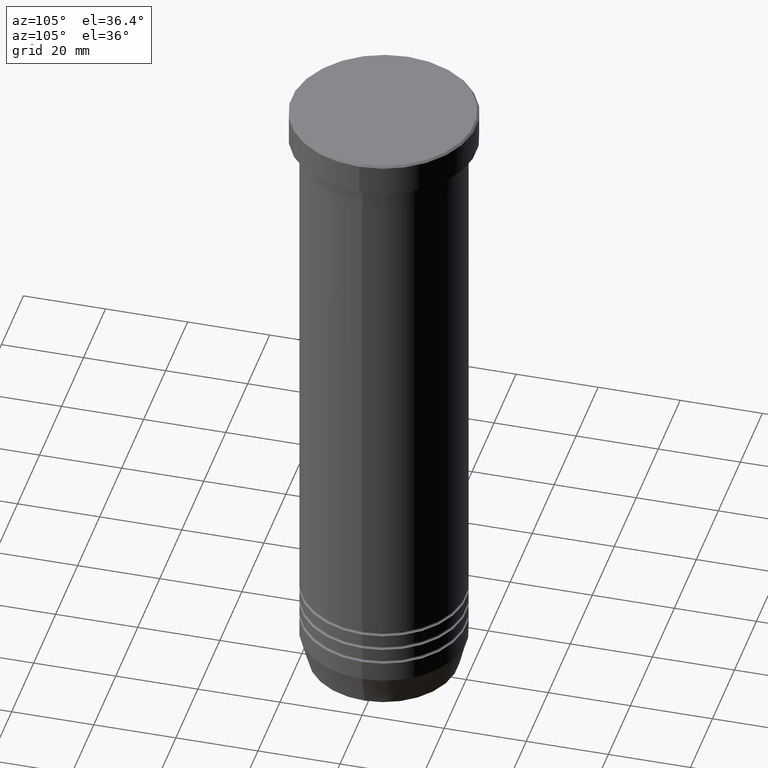
[diagram: clean part render]
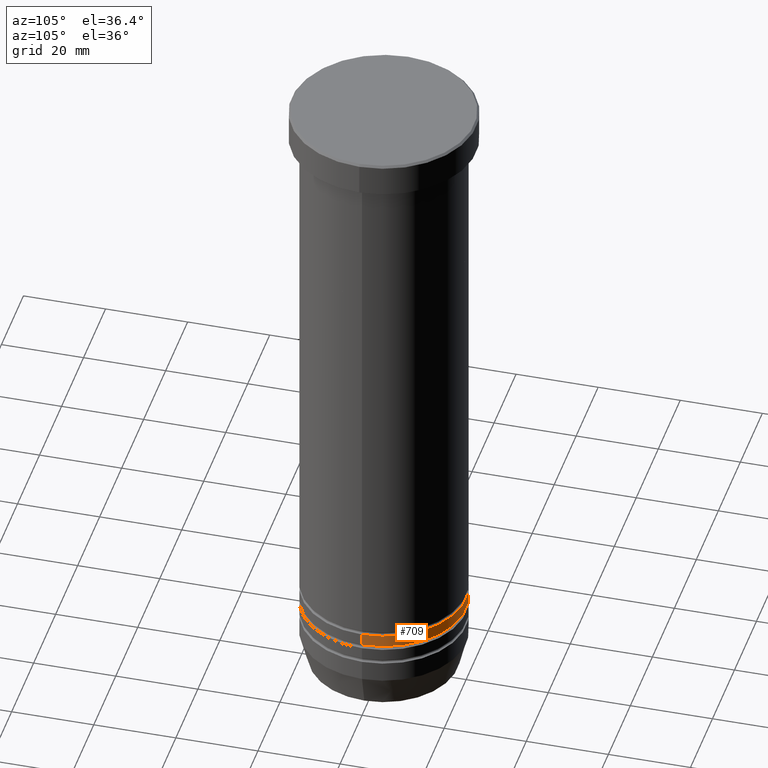
[diagram: same view with one face highlighted and labeled with its STEP entity id]
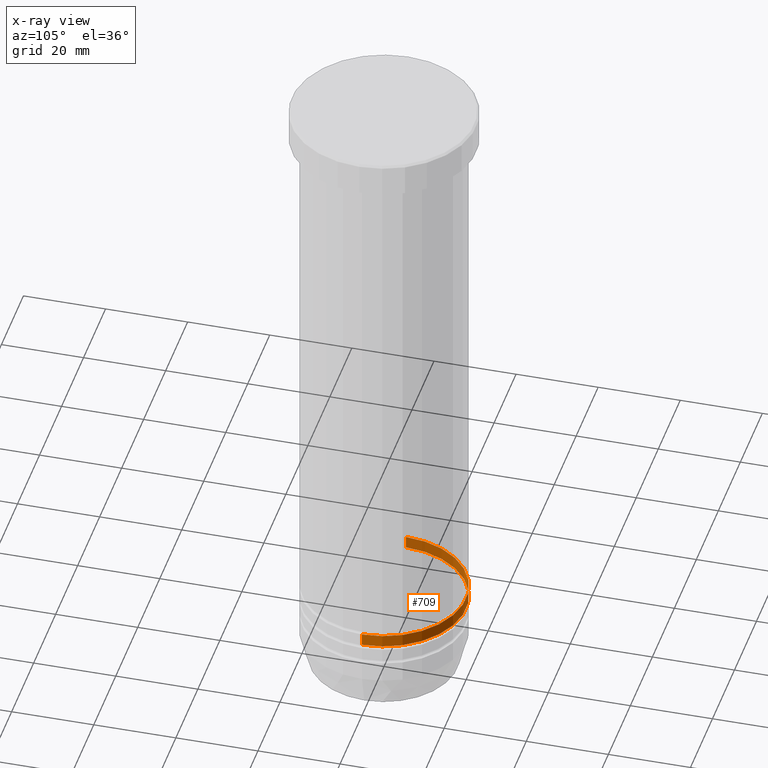
[diagram: x-ray of the same camera — body ghosted, the highlighted face saturated]
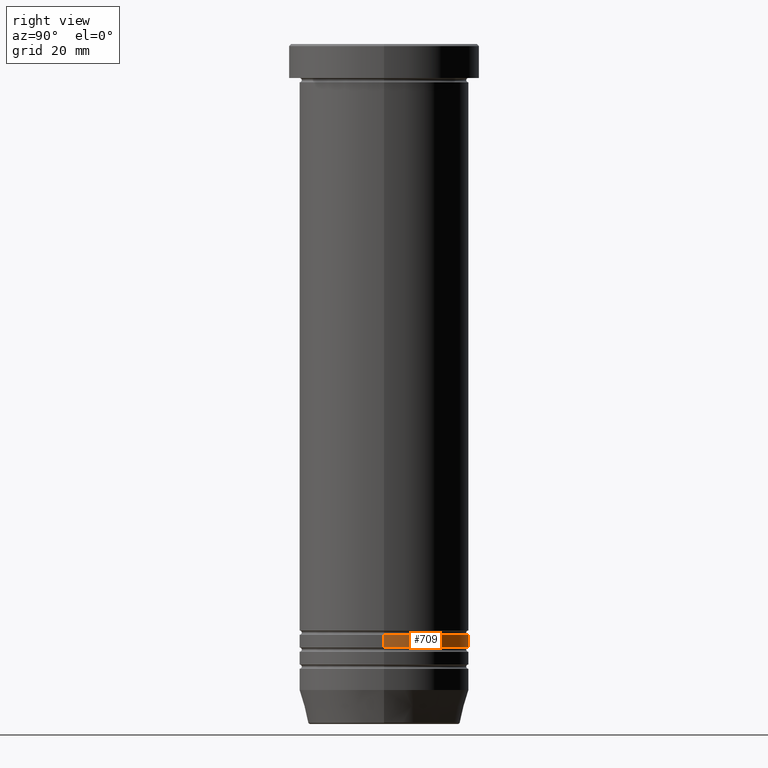
[diagram: same view with one face highlighted and labeled with its STEP entity id]
A machine part, auxiliary view. The second image highlights one B-rep face of the part: STEP entity #709.
The next image is the same camera in x-ray: the body ghosted, the highlighted face saturated — about 34% of this face is hidden behind the body in this view.
A second angle (right view) of the same face is appended — the face is thin or edge-on in the first view.
In plain terms, the highlighted cylindrical surface (partial cylindrical patch) has radius 20 mm, axis along (-0, -0, 1).
Its self-contained STEP definition (entity closure, byte-faithful):
#64 = VERTEX_POINT ( 'NONE', #217 ) ;
#123 = EDGE_LOOP ( 'NONE', ( #960, #947, #302, #232 ) ) ;
#139 = CYLINDRICAL_SURFACE ( 'NONE', #704, 19.99999999999999645 ) ;
#166 = CARTESIAN_POINT ( 'NONE',  ( -19.99999999999999645, 2.449293598294706119E-15, -142.0000000000000000 ) ) ;
#174 = DIRECTION ( 'NONE',  ( -0.000000000000000000, -0.000000000000000000, 1.000000000000000000 ) ) ;
#212 = VERTEX_POINT ( 'NONE', #312 ) ;
#217 = CARTESIAN_POINT ( 'NONE',  ( 20.00000000000000000, 0.000000000000000000, -139.0000000000000000 ) ) ;
#232 = ORIENTED_EDGE ( 'NONE', *, *, #481, .F. ) ;
#240 = AXIS2_PLACEMENT_3D ( 'NONE', #649, #975, #397 ) ;
#264 = DIRECTION ( 'NONE',  ( 1.000000000000000000, 0.000000000000000000, 0.000000000000000000 ) ) ;
#283 = LINE ( 'NONE', #1039, #567 ) ;
#302 = ORIENTED_EDGE ( 'NONE', *, *, #871, .F. ) ;
#312 = CARTESIAN_POINT ( 'NONE',  ( -20.00000000000000000, 2.449293598294706513E-15, -139.0000000000000000 ) ) ;
#317 = DIRECTION ( 'NONE',  ( 1.000000000000000000, 0.000000000000000000, 0.000000000000000000 ) ) ;
#340 = CARTESIAN_POINT ( 'NONE',  ( 0.000000000000000000, 0.000000000000000000, 0.000000000000000000 ) ) ;
#397 = DIRECTION ( 'NONE',  ( 1.000000000000000000, 0.000000000000000000, 0.000000000000000000 ) ) ;
#468 = CARTESIAN_POINT ( 'NONE',  ( 19.99999999999999645, 0.000000000000000000, -142.0000000000000000 ) ) ;
#481 = EDGE_CURVE ( 'NONE', #557, #64, #502, .T. ) ;
#502 = LINE ( 'NONE', #987, #829 ) ;
#523 = VERTEX_POINT ( 'NONE', #166 ) ;
#534 = CIRCLE ( 'NONE', #240, 20.00000000000000000 ) ;
#542 = FACE_OUTER_BOUND ( 'NONE', #123, .T. ) ;
#550 = CIRCLE ( 'NONE', #897, 19.99999999999999645 ) ;
#557 = VERTEX_POINT ( 'NONE', #468 ) ;
#567 = VECTOR ( 'NONE', #569, 1000.000000000000000 ) ;
#569 = DIRECTION ( 'NONE',  ( -0.000000000000000000, -0.000000000000000000, 1.000000000000000000 ) ) ;
#649 = CARTESIAN_POINT ( 'NONE',  ( 0.000000000000000000, 0.000000000000000000, -139.0000000000000000 ) ) ;
#675 = DIRECTION ( 'NONE',  ( -0.000000000000000000, -0.000000000000000000, 1.000000000000000000 ) ) ;
#704 = AXIS2_PLACEMENT_3D ( 'NONE', #340, #675, #264 ) ;
#709 = ADVANCED_FACE ( 'NONE', ( #542 ), #139, .T. ) ;
#722 = EDGE_CURVE ( 'NONE', #557, #523, #550, .T. ) ;
#732 = DIRECTION ( 'NONE',  ( -0.000000000000000000, -0.000000000000000000, 1.000000000000000000 ) ) ;
#745 = CARTESIAN_POINT ( 'NONE',  ( 0.000000000000000000, 0.000000000000000000, -142.0000000000000000 ) ) ;
#829 = VECTOR ( 'NONE', #174, 1000.000000000000000 ) ;
#871 = EDGE_CURVE ( 'NONE', #64, #212, #534, .T. ) ;
#897 = AXIS2_PLACEMENT_3D ( 'NONE', #745, #732, #317 ) ;
#925 = EDGE_CURVE ( 'NONE', #523, #212, #283, .T. ) ;
#947 = ORIENTED_EDGE ( 'NONE', *, *, #925, .T. ) ;
#960 = ORIENTED_EDGE ( 'NONE', *, *, #722, .T. ) ;
#975 = DIRECTION ( 'NONE',  ( -0.000000000000000000, -0.000000000000000000, 1.000000000000000000 ) ) ;
#987 = CARTESIAN_POINT ( 'NONE',  ( 19.99999999999999645, 0.000000000000000000, 0.000000000000000000 ) ) ;
#1039 = CARTESIAN_POINT ( 'NONE',  ( -19.99999999999999645, 2.449293598294706119E-15, 0.000000000000000000 ) ) ;